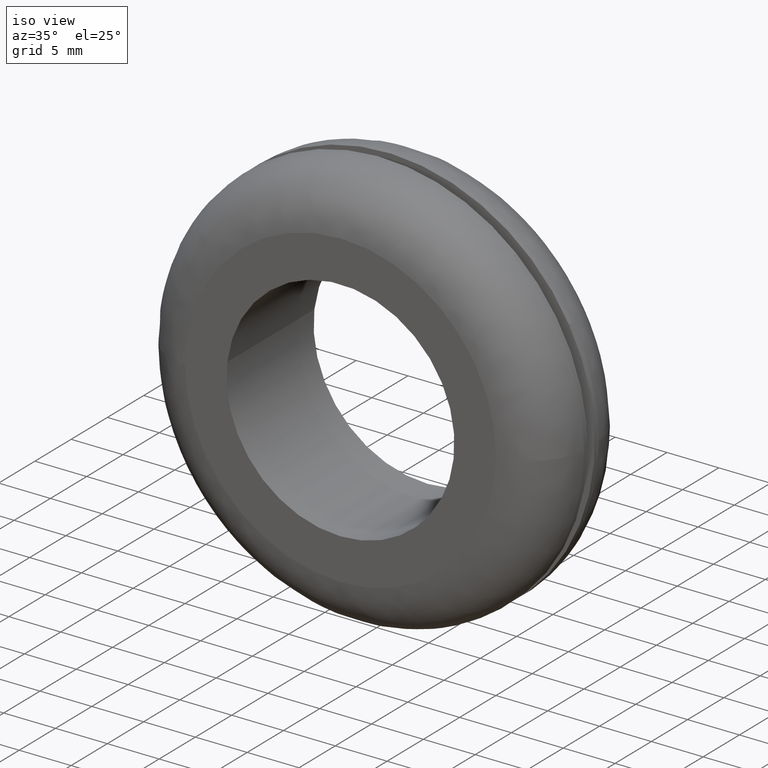
[diagram: clean part render]
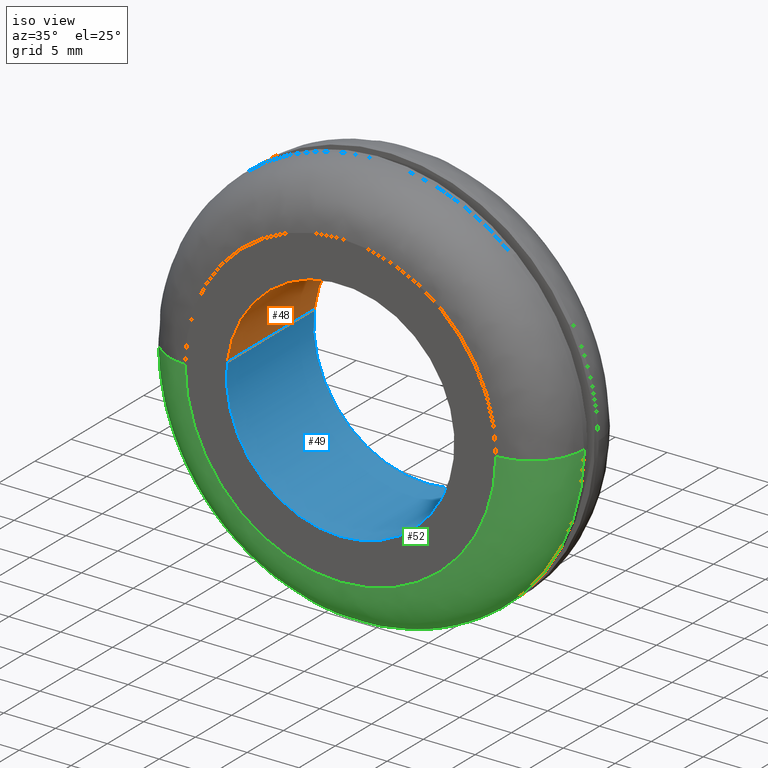
[diagram: same view with three faces highlighted in distinct colors, each labeled with its STEP entity id]
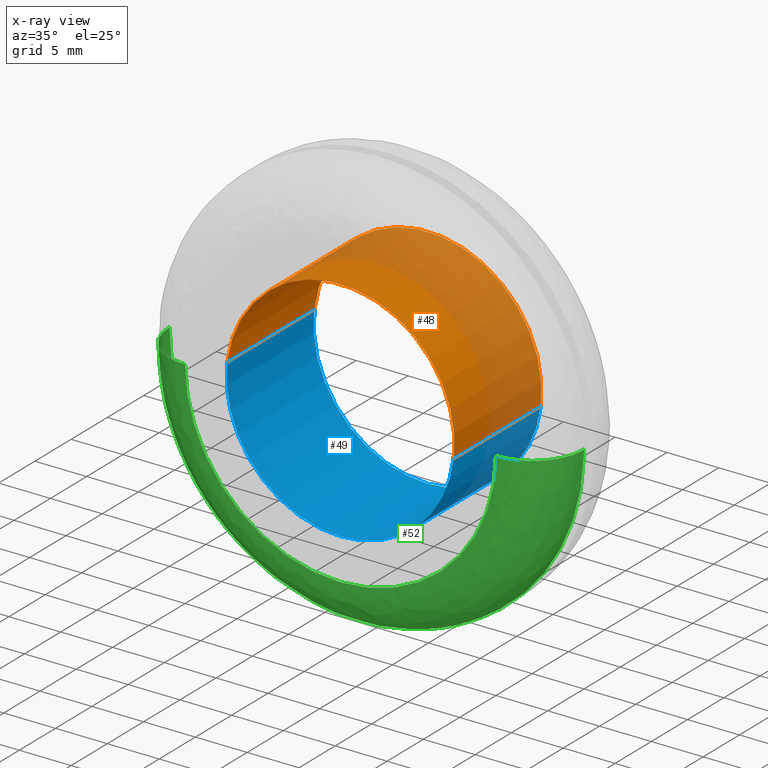
[diagram: x-ray of the same camera — body ghosted, the three highlighted faces saturated]
A machine part, iso view with three faces highlighted in distinct colors.
The next image is the same camera in x-ray (body ghosted, the three faces saturated) — at least one of them is partly hidden behind the body in this view.
Their STEP definitions:

[orange] entity #48 — the highlighted cylindrical surface (partial cylindrical patch) has radius 11 mm, axis along (0, 1, 0).
#48=ADVANCED_FACE('',(#141),#140,.F.);
#140=CYLINDRICAL_SURFACE('',#267,1.10000000000E+001);
#141=FACE_OUTER_BOUND('',#268,.T.);
#264=CARTESIAN_POINT('',(-3.18688587186E-013,1.20000000000E+001,-2.88644124713E-012));
#265=DIRECTION('',(2.64411548265E-016,1.00000000000E+000,1.54040761604E-015));
#266=DIRECTION('',(-9.93009612603E-001,8.07434927000E-017,1.18033509129E-001));
#267=AXIS2_PLACEMENT_3D('',#264,#265,#266);
#268=EDGE_LOOP('',(#436,#437,#438,#439));
#436=ORIENTED_EDGE('',*,*,#510,.T.);
#437=ORIENTED_EDGE('',*,*,#523,.T.);
#438=ORIENTED_EDGE('',*,*,#504,.F.);
#439=ORIENTED_EDGE('',*,*,#524,.F.);
#504=EDGE_CURVE('',#644,#651,#652,.T.);
#510=EDGE_CURVE('',#693,#685,#694,.T.);
#523=EDGE_CURVE('',#685,#651,#779,.T.);
#524=EDGE_CURVE('',#693,#644,#785,.T.);
#644=VERTEX_POINT('',#952);
#651=VERTEX_POINT('',#957);
#652=CIRCLE('',#961,1.10000000000E+001);
#685=VERTEX_POINT('',#981);
#693=VERTEX_POINT('',#987);
#694=CIRCLE('',#991,1.10000000000E+001);
#779=(BOUNDED_CURVE() B_SPLINE_CURVE(1,(#1039,#1040),.UNSPECIFIED.,.F.,.F.) B_SPLINE_CURVE_WITH_KNOTS((2,2),(8.33333343261E-002,9.16666667006E-001),.UNSPECIFIED.) CURVE() GEOMETRIC_REPRESENTATION_ITEM() RATIONAL_B_SPLINE_CURVE((1.00000000000E+000,1.00000000000E+000)) REPRESENTATION_ITEM('') );
#785=(BOUNDED_CURVE() B_SPLINE_CURVE(1,(#1041,#1042),.UNSPECIFIED.,.F.,.F.) B_SPLINE_CURVE_WITH_KNOTS((2,2),(8.33333333333E-002,9.16666666667E-001),.UNSPECIFIED.) CURVE() GEOMETRIC_REPRESENTATION_ITEM() RATIONAL_B_SPLINE_CURVE((7.50000000000E-001,7.50000000000E-001)) REPRESENTATION_ITEM('') );
#952=CARTESIAN_POINT('',(1.09228811703E+001,1.20000000000E+001,-1.30025648987E+000));
#957=CARTESIAN_POINT('',(-1.09231062134E+001,1.20000000000E+001,1.29836460578E+000));
#958=CARTESIAN_POINT('',(8.10462807976E-012,1.20000000000E+001,1.78319581323E-011));
#959=DIRECTION('',(-9.75501020498E-015,-1.00000000000E+000,-6.56510528023E-014));
#960=DIRECTION('',(-7.36757876929E-013,6.56510528023E-014,-1.00000000000E+000));
#961=AXIS2_PLACEMENT_3D('',#958,#959,#960);
#981=CARTESIAN_POINT('',(-1.09231062134E+001,-2.44181798932E-015,1.29836460578E+000));
#987=CARTESIAN_POINT('',(1.09228811703E+001,-2.23187133700E-015,-1.30025648987E+000));
#988=CARTESIAN_POINT('',(7.90745247059E-012,-2.33653662792E-015,1.73994152419E-011));
#989=DIRECTION('',(4.76711032197E-017,-1.00000000000E+000,3.19968027881E-016));
#990=DIRECTION('',(-7.18716752779E-013,-3.19968027881E-016,-1.00000000000E+000));
#991=AXIS2_PLACEMENT_3D('',#988,#989,#990);
#1039=CARTESIAN_POINT('',(-1.09231057386E+001,1.42954843518E-008,1.29836860042E+000));
#1040=CARTESIAN_POINT('',(-1.09231057386E+001,1.20000000049E+001,1.29836860042E+000));
#1041=CARTESIAN_POINT('',(1.09231057386E+001,-3.25665420557E-015,-1.29836860042E+000));
#1042=CARTESIAN_POINT('',(1.09231057386E+001,1.20000000000E+001,-1.29836860042E+000));

[blue] entity #49 — the highlighted cylindrical surface (partial cylindrical patch) has radius 11 mm, axis along (0, 1, 0).
#49=ADVANCED_FACE('',(#151),#150,.F.);
#150=CYLINDRICAL_SURFACE('',#272,1.10000000000E+001);
#151=FACE_OUTER_BOUND('',#273,.T.);
#269=CARTESIAN_POINT('',(-3.18688587186E-013,1.20000000000E+001,-2.88644124713E-012));
#270=DIRECTION('',(2.64411548265E-016,1.00000000000E+000,1.54040761604E-015));
#271=DIRECTION('',(-9.93009612603E-001,8.07434927000E-017,1.18033509129E-001));
#272=AXIS2_PLACEMENT_3D('',#269,#270,#271);
#273=EDGE_LOOP('',(#440,#441,#442,#443,#444,#445));
#440=ORIENTED_EDGE('',*,*,#503,.F.);
#441=ORIENTED_EDGE('',*,*,#505,.F.);
#442=ORIENTED_EDGE('',*,*,#523,.F.);
#443=ORIENTED_EDGE('',*,*,#509,.T.);
#444=ORIENTED_EDGE('',*,*,#511,.T.);
#445=ORIENTED_EDGE('',*,*,#524,.T.);
#503=EDGE_CURVE('',#643,#644,#645,.T.);
#505=EDGE_CURVE('',#651,#643,#658,.T.);
#509=EDGE_CURVE('',#685,#686,#687,.T.);
#511=EDGE_CURVE('',#686,#693,#700,.T.);
#523=EDGE_CURVE('',#685,#651,#779,.T.);
#524=EDGE_CURVE('',#693,#644,#785,.T.);
#643=VERTEX_POINT('',#951);
#644=VERTEX_POINT('',#952);
#645=CIRCLE('',#956,1.10000000000E+001);
#651=VERTEX_POINT('',#957);
#658=CIRCLE('',#965,1.10000000000E+001);
#685=VERTEX_POINT('',#981);
#686=VERTEX_POINT('',#982);
#687=CIRCLE('',#986,1.10000000000E+001);
#693=VERTEX_POINT('',#987);
#700=CIRCLE('',#995,1.10000000000E+001);
#779=(BOUNDED_CURVE() B_SPLINE_CURVE(1,(#1039,#1040),.UNSPECIFIED.,.F.,.F.) B_SPLINE_CURVE_WITH_KNOTS((2,2),(8.33333343261E-002,9.16666667006E-001),.UNSPECIFIED.) CURVE() GEOMETRIC_REPRESENTATION_ITEM() RATIONAL_B_SPLINE_CURVE((1.00000000000E+000,1.00000000000E+000)) REPRESENTATION_ITEM('') );
#785=(BOUNDED_CURVE() B_SPLINE_CURVE(1,(#1041,#1042),.UNSPECIFIED.,.F.,.F.) B_SPLINE_CURVE_WITH_KNOTS((2,2),(8.33333333333E-002,9.16666666667E-001),.UNSPECIFIED.) CURVE() GEOMETRIC_REPRESENTATION_ITEM() RATIONAL_B_SPLINE_CURVE((7.50000000000E-001,7.50000000000E-001)) REPRESENTATION_ITEM('') );
#951=CARTESIAN_POINT('',(-3.55271367880E-015,1.20000000000E+001,-1.10000000000E+001));
#952=CARTESIAN_POINT('',(1.09228811703E+001,1.20000000000E+001,-1.30025648987E+000));
#953=CARTESIAN_POINT('',(8.10462807976E-012,1.20000000000E+001,1.78319581323E-011));
#954=DIRECTION('',(-9.75501020498E-015,-1.00000000000E+000,-6.56510528023E-014));
#955=DIRECTION('',(-7.36757876929E-013,6.56510528023E-014,-1.00000000000E+000));
#956=AXIS2_PLACEMENT_3D('',#953,#954,#955);
#957=CARTESIAN_POINT('',(-1.09231062134E+001,1.20000000000E+001,1.29836460578E+000));
#962=CARTESIAN_POINT('',(8.10462807976E-012,1.20000000000E+001,1.78319581323E-011));
#963=DIRECTION('',(-9.75501020498E-015,-1.00000000000E+000,-6.56510528023E-014));
#964=DIRECTION('',(-7.36757876929E-013,6.56510528023E-014,-1.00000000000E+000));
#965=AXIS2_PLACEMENT_3D('',#962,#963,#964);
#981=CARTESIAN_POINT('',(-1.09231062134E+001,-2.44181798932E-015,1.29836460578E+000));
#982=CARTESIAN_POINT('',(-2.44249065418E-015,-5.85618493460E-015,-1.10000000000E+001));
#983=CARTESIAN_POINT('',(7.90745247059E-012,-2.33653662792E-015,1.73994152419E-011));
#984=DIRECTION('',(4.76711032197E-017,-1.00000000000E+000,3.19968027881E-016));
#985=DIRECTION('',(-7.18716752779E-013,-3.19968027881E-016,-1.00000000000E+000));
#986=AXIS2_PLACEMENT_3D('',#983,#984,#985);
#987=CARTESIAN_POINT('',(1.09228811703E+001,-2.23187133700E-015,-1.30025648987E+000));
#992=CARTESIAN_POINT('',(7.90745247059E-012,-2.33653662792E-015,1.73994152419E-011));
#993=DIRECTION('',(4.76711032197E-017,-1.00000000000E+000,3.19968027881E-016));
#994=DIRECTION('',(-7.18716752779E-013,-3.19968027881E-016,-1.00000000000E+000));
#995=AXIS2_PLACEMENT_3D('',#992,#993,#994);
#1039=CARTESIAN_POINT('',(-1.09231057386E+001,1.42954843518E-008,1.29836860042E+000));
#1040=CARTESIAN_POINT('',(-1.09231057386E+001,1.20000000049E+001,1.29836860042E+000));
#1041=CARTESIAN_POINT('',(1.09231057386E+001,-3.25665420557E-015,-1.29836860042E+000));
#1042=CARTESIAN_POINT('',(1.09231057386E+001,1.20000000000E+001,-1.29836860042E+000));

[green] entity #52 — the highlighted face is a freeform B-spline surface patch.
#52=ADVANCED_FACE('',(#181),#180,.T.);
#180=( BOUNDED_SURFACE() B_SPLINE_SURFACE( 2,2,((#284,#285,#286,#287,#288),(#289,#290,#291,#292,#293),(#294,#295,#296,#297,#298),(#299,#300,#301,#302,#303),(#304,#305,#306,#307,#308)), .UNSPECIFIED.,.F.,.F.,.F.) B_SPLINE_SURFACE_WITH_KNOTS((3,2,3),(3,2,3),(0.00000000000E+000,5.00000000000E-001,1.00000000000E+000),(0.00000000000E+000,5.00000000000E-001,1.00000000000E+000), .UNSPECIFIED. ) GEOMETRIC_REPRESENTATION_ITEM() RATIONAL_B_SPLINE_SURFACE(((1.00000000000E+000,7.07106781087E-001,1.00000000000E+000,7.07106781087E-001,1.00000000000E+000),(7.07106781187E-001,4.99999999930E-001,7.07106781187E-001,4.99999999930E-001,7.07106781187E-001),(1.00000000000E+000,7.07106781087E-001,1.00000000000E+000,7.07106781087E-001,1.00000000000E+000),(7.07106781187E-001,4.99999999930E-001,7.07106781187E-001,4.99999999930E-001,7.07106781187E-001),(1.00000000000E+000,7.07106781087E-001,1.00000000000E+000,7.07106781087E-001,1.00000000000E+000))) REPRESENTATION_ITEM('') SURFACE() );
#181=FACE_OUTER_BOUND('',#309,.T.);
#284=CARTESIAN_POINT('',(-2.00000000000E+001,5.00000000000E+000,-1.89832958380E-014));
#285=CARTESIAN_POINT('',(-2.00000000000E+001,-1.40367459096E-009,-1.91947472232E-014));
#286=CARTESIAN_POINT('',(-1.49999999986E+001,-5.32907051820E-015,-1.85824440460E-014));
#287=CARTESIAN_POINT('',(-9.99999999719E+000,1.40366391433E-009,-1.79701408689E-014));
#288=CARTESIAN_POINT('',(-1.00000000000E+001,5.00000000281E+000,-1.77586894841E-014));
#289=CARTESIAN_POINT('',(-2.00000000000E+001,5.00000000000E+000,-2.00000000000E+001));
#290=CARTESIAN_POINT('',(-2.00000000000E+001,-1.40367344264E-009,-2.00000000000E+001));
#291=CARTESIAN_POINT('',(-1.49999999986E+001,-4.59327942371E-015,-1.49999999986E+001));
#292=CARTESIAN_POINT('',(-9.99999999719E+000,1.40366417448E-009,-9.99999999719E+000));
#293=CARTESIAN_POINT('',(-1.00000000000E+001,5.00000000281E+000,-1.00000000000E+001));
#294=CARTESIAN_POINT('',(-2.30615627552E-014,5.00000000000E+000,-2.00000000000E+001));
#295=CARTESIAN_POINT('',(-2.32839192168E-014,-1.40367459096E-009,-2.00000000000E+001));
#296=CARTESIAN_POINT('',(-2.35900606940E-014,-5.32907051820E-015,-1.49999999986E+001));
#297=CARTESIAN_POINT('',(-2.38962021711E-014,1.40366391433E-009,-9.99999999719E+000));
#298=CARTESIAN_POINT('',(-2.36738457093E-014,5.00000000281E+000,-1.00000000000E+001));
#299=CARTESIAN_POINT('',(2.00000000000E+001,5.00000000000E+000,-2.00000000000E+001));
#300=CARTESIAN_POINT('',(2.00000000000E+001,-1.40367521900E-009,-2.00000000000E+001));
#301=CARTESIAN_POINT('',(1.49999999986E+001,-6.21724893790E-015,-1.49999999986E+001));
#302=CARTESIAN_POINT('',(9.99999999719E+000,1.40366302616E-009,-9.99999999719E+000));
#303=CARTESIAN_POINT('',(1.00000000000E+001,5.00000000281E+000,-1.00000000000E+001));
#304=CARTESIAN_POINT('',(2.00000000000E+001,5.00000000000E+000,-1.65341640211E-014));
#305=CARTESIAN_POINT('',(2.00000000000E+001,-1.40367647507E-009,-1.67456154062E-014));
#306=CARTESIAN_POINT('',(1.49999999986E+001,-7.10542735760E-015,-1.67455951834E-014));
#307=CARTESIAN_POINT('',(9.99999999719E+000,1.40366328630E-009,-1.67455749607E-014));
#308=CARTESIAN_POINT('',(1.00000000000E+001,5.00000000281E+000,-1.65341235756E-014));
#309=EDGE_LOOP('',(#460,#461,#462,#463,#464,#465));
#460=ORIENTED_EDGE('',*,*,#507,.F.);
#461=ORIENTED_EDGE('',*,*,#534,.F.);
#462=ORIENTED_EDGE('',*,*,#517,.T.);
#463=ORIENTED_EDGE('',*,*,#515,.T.);
#464=ORIENTED_EDGE('',*,*,#514,.T.);
#465=ORIENTED_EDGE('',*,*,#535,.T.);
#507=EDGE_CURVE('',#665,#672,#673,.T.);
#514=EDGE_CURVE('',#720,#713,#721,.T.);
#515=EDGE_CURVE('',#727,#720,#728,.T.);
#517=EDGE_CURVE('',#740,#727,#741,.T.);
#534=EDGE_CURVE('',#740,#665,#852,.T.);
#535=EDGE_CURVE('',#713,#672,#858,.T.);
#665=VERTEX_POINT('',#967);
#672=VERTEX_POINT('',#972);
#673=CIRCLE('',#976,1.50000000003E+001);
#713=VERTEX_POINT('',#999);
#720=VERTEX_POINT('',#1004);
#721=CIRCLE('',#1008,2.00000000000E+001);
#727=VERTEX_POINT('',#1009);
#728=CIRCLE('',#1013,2.00000000000E+001);
#740=VERTEX_POINT('',#1016);
#741=CIRCLE('',#1020,1.99999991828E+001);
#852=(BOUNDED_CURVE() B_SPLINE_CURVE(2,(#1082,#1083,#1084),.UNSPECIFIED.,.F.,.F.) B_SPLINE_CURVE_WITH_KNOTS((3,3),(0.00000000000E+000,5.00000000000E-001),.UNSPECIFIED.) CURVE() GEOMETRIC_REPRESENTATION_ITEM() RATIONAL_B_SPLINE_CURVE((1.00000000000E+000,7.07106781087E-001,1.00000000000E+000)) REPRESENTATION_ITEM('') );
#858=(BOUNDED_CURVE() B_SPLINE_CURVE(3,(#1085,#1086,#1087,#1088,#1089),.UNSPECIFIED.,.F.,.F.) B_SPLINE_CURVE_WITH_KNOTS((4,1,4),(0.00000000000E+000,2.50000031456E-001,5.00000054662E-001),.UNSPECIFIED.) CURVE() GEOMETRIC_REPRESENTATION_ITEM() RATIONAL_B_SPLINE_CURVE((1.00000000000E+000,1.00000000000E+000,1.00000000000E+000,1.00000000000E+000,1.00000000000E+000)) REPRESENTATION_ITEM('') );
#967=CARTESIAN_POINT('',(-1.50000000004E+001,-3.36617101009E-016,-2.09932709271E-014));
#972=CARTESIAN_POINT('',(1.49999999195E+001,-3.36858696637E-016,-1.55672776202E-003));
#973=CARTESIAN_POINT('',(-5.94440052737E-011,-3.36617100964E-016,2.91112023376E-010));
#974=DIRECTION('',(5.59790953839E-033,-1.00000000000E+000,1.55194526599E-016));
#975=DIRECTION('',(3.96317053257E-012,1.55194526599E-016,1.00000000000E+000));
#976=AXIS2_PLACEMENT_3D('',#973,#974,#975);
#999=CARTESIAN_POINT('',(2.00000000000E+001,5.00000000004E+000,1.03878675429E-005));
#1004=CARTESIAN_POINT('',(1.99936837857E+001,4.99999999996E+000,-5.02601908872E-001));
#1005=CARTESIAN_POINT('',(-7.10542735760E-015,4.99999999994E+000,-5.32907051820E-015));
#1006=DIRECTION('',(4.79088583744E-012,-1.00000000000E+000,1.43276256855E-010));
#1007=DIRECTION('',(-9.99684189283E-001,-1.18882681477E-012,2.51300954436E-002));
#1008=AXIS2_PLACEMENT_3D('',#1005,#1006,#1007);
#1009=CARTESIAN_POINT('',(-1.30867924874E+001,5.00000000000E+000,-1.51240160801E+001));
#1010=CARTESIAN_POINT('',(-2.61834998128E-012,4.99999999996E+000,2.68229882749E-012));
#1011=DIRECTION('',(1.57009245867E-017,-1.00000000000E+000,-1.84794402003E-012));
#1012=DIRECTION('',(-1.30917499064E-013,-1.84794402003E-012,1.00000000000E+000));
#1013=AXIS2_PLACEMENT_3D('',#1010,#1011,#1012);
#1016=CARTESIAN_POINT('',(-2.00000000094E+001,5.00000000004E+000,-1.89372325322E-014));
#1017=CARTESIAN_POINT('',(-8.26682541089E-007,4.99999999980E+000,-3.65389765555E-007));
#1018=DIRECTION('',(-1.15870800569E-011,-1.00000000000E+000,-1.43098283420E-010));
#1019=DIRECTION('',(9.99684188798E-001,-7.98734444582E-012,-2.51301147400E-002));
#1020=AXIS2_PLACEMENT_3D('',#1017,#1018,#1019);
#1082=CARTESIAN_POINT('',(-2.00000000000E+001,5.00000000000E+000,-1.89832958380E-014));
#1083=CARTESIAN_POINT('',(-2.00000000000E+001,-1.40367459096E-009,-1.91947472232E-014));
#1084=CARTESIAN_POINT('',(-1.49999999986E+001,-5.32907051820E-015,-1.85824440460E-014));
#1085=CARTESIAN_POINT('',(2.00000000000E+001,5.00000000000E+000,-1.53950926081E-014));
#1086=CARTESIAN_POINT('',(2.00092210930E+001,3.70943796326E+000,-1.50969260880E-014));
#1087=CARTESIAN_POINT('',(1.89211760761E+001,1.07882327196E+000,-1.43526260433E-014));
#1088=CARTESIAN_POINT('',(1.62905612185E+001,-9.22129101498E-003,-1.37757926355E-014));
#1089=CARTESIAN_POINT('',(1.49999992256E+001,5.28706351555E-014,-1.36187359288E-014));